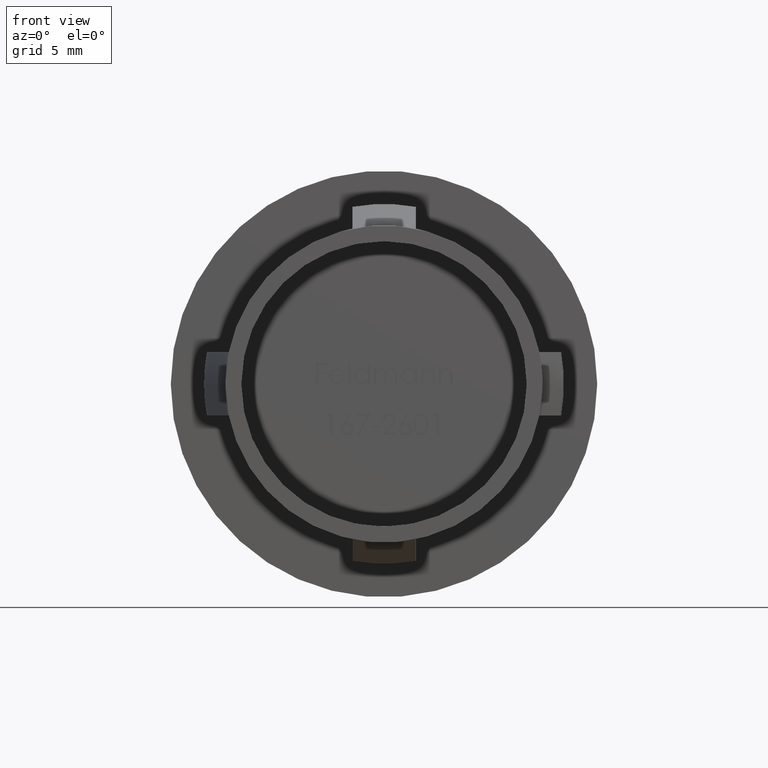
[diagram: clean part render]
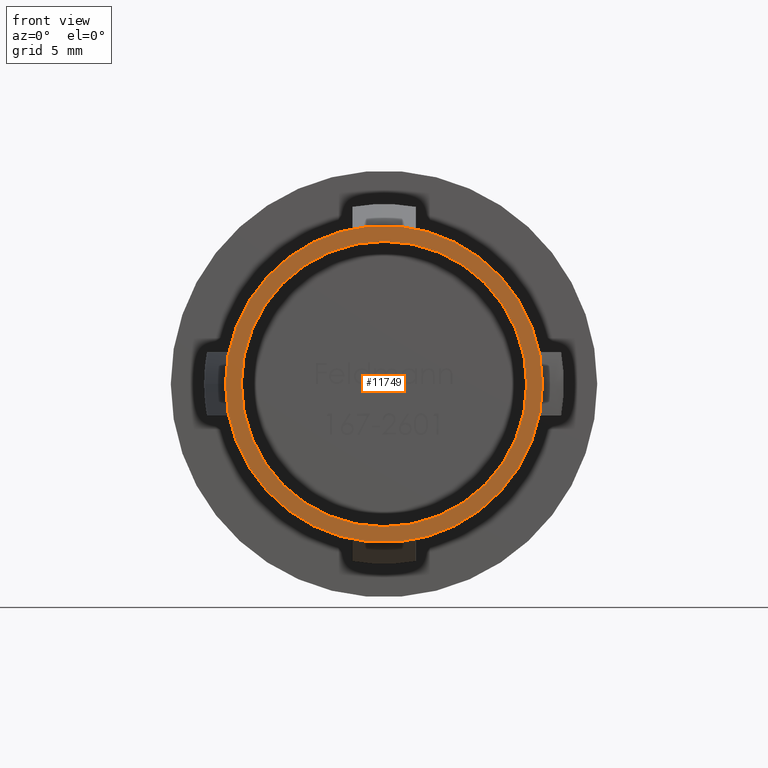
[diagram: same view with one face highlighted and labeled with its STEP entity id]
A machine part, front view. The second image highlights one B-rep face of the part: STEP entity #11749.
In plain terms, the highlighted planar face has unit normal (0, 1, -0).
Its self-contained STEP definition (entity closure, byte-faithful):
#250 = DIRECTION ( 'NONE',  ( -1.000000000000000000, 7.347880794884120229E-17, 0.000000000000000000 ) ) ;
#894 = CARTESIAN_POINT ( 'NONE',  ( -1.557750728515432986E-15, 0.000000000000000000, 0.000000000000000000 ) ) ;
#1254 = CARTESIAN_POINT ( 'NONE',  ( 10.00000000000000355, -7.347880794884123680E-16, 1.224646799147354045E-15 ) ) ;
#1377 = VERTEX_POINT ( 'NONE', #3438 ) ;
#2085 = CARTESIAN_POINT ( 'NONE',  ( -1.557750728515432986E-15, 0.000000000000000000, 0.000000000000000000 ) ) ;
#2576 = FACE_BOUND ( 'NONE', #8089, .T. ) ;
#3041 = VERTEX_POINT ( 'NONE', #1254 ) ;
#3438 = CARTESIAN_POINT ( 'NONE',  ( 9.000000000000001776, -6.613092715395710425E-16, 1.102182119232617911E-15 ) ) ;
#3460 = CIRCLE ( 'NONE', #3853, 9.000000000000003553 ) ;
#3544 = ORIENTED_EDGE ( 'NONE', *, *, #12709, .T. ) ;
#3725 = VERTEX_POINT ( 'NONE', #6618 ) ;
#3780 = DIRECTION ( 'NONE',  ( 7.347880794884120229E-17, 1.000000000000000000, -0.000000000000000000 ) ) ;
#3828 = DIRECTION ( 'NONE',  ( 7.347880794884120229E-17, 1.000000000000000000, -0.000000000000000000 ) ) ;
#3853 = AXIS2_PLACEMENT_3D ( 'NONE', #894, #7369, #13644 ) ;
#3864 = ORIENTED_EDGE ( 'NONE', *, *, #13024, .F. ) ;
#4889 = CIRCLE ( 'NONE', #11435, 9.000000000000003553 ) ;
#5763 = CARTESIAN_POINT ( 'NONE',  ( -10.00000000000000711, 7.347880794884123680E-16, 0.000000000000000000 ) ) ;
#6120 = AXIS2_PLACEMENT_3D ( 'NONE', #10162, #3828, #13201 ) ;
#6618 = CARTESIAN_POINT ( 'NONE',  ( -9.000000000000005329, 6.613092715395710425E-16, 0.000000000000000000 ) ) ;
#7369 = DIRECTION ( 'NONE',  ( 7.347880794884120229E-17, 1.000000000000000000, -0.000000000000000000 ) ) ;
#7753 = CARTESIAN_POINT ( 'NONE',  ( -1.557750728515432986E-15, 0.000000000000000000, 0.000000000000000000 ) ) ;
#7980 = CARTESIAN_POINT ( 'NONE',  ( -1.557750728515432986E-15, 0.000000000000000000, 0.000000000000000000 ) ) ;
#8089 = EDGE_LOOP ( 'NONE', ( #10374, #3544 ) ) ;
#8162 = EDGE_CURVE ( 'NONE', #3725, #1377, #3460, .T. ) ;
#8206 = CIRCLE ( 'NONE', #11123, 10.00000000000000533 ) ;
#8875 = VERTEX_POINT ( 'NONE', #5763 ) ;
#10162 = CARTESIAN_POINT ( 'NONE',  ( 9.000000000000001776, 3.673940397442063196E-17, 0.000000000000000000 ) ) ;
#10374 = ORIENTED_EDGE ( 'NONE', *, *, #8162, .T. ) ;
#10630 = DIRECTION ( 'NONE',  ( -1.000000000000000000, 7.347880794884120229E-17, 0.000000000000000000 ) ) ;
#10718 = FACE_OUTER_BOUND ( 'NONE', #11555, .T. ) ;
#10779 = DIRECTION ( 'NONE',  ( 7.347880794884120229E-17, 1.000000000000000000, -0.000000000000000000 ) ) ;
#11123 = AXIS2_PLACEMENT_3D ( 'NONE', #7980, #3780, #11195 ) ;
#11144 = PLANE ( 'NONE',  #6120 ) ;
#11195 = DIRECTION ( 'NONE',  ( -1.000000000000000000, 7.347880794884120229E-17, 0.000000000000000000 ) ) ;
#11435 = AXIS2_PLACEMENT_3D ( 'NONE', #7753, #10779, #250 ) ;
#11555 = EDGE_LOOP ( 'NONE', ( #3864, #12420 ) ) ;
#11722 = DIRECTION ( 'NONE',  ( 7.347880794884120229E-17, 1.000000000000000000, -0.000000000000000000 ) ) ;
#11749 = ADVANCED_FACE ( 'NONE', ( #2576, #10718 ), #11144, .F. ) ;
#11893 = EDGE_CURVE ( 'NONE', #3041, #8875, #8206, .T. ) ;
#11977 = AXIS2_PLACEMENT_3D ( 'NONE', #2085, #11722, #10630 ) ;
#12420 = ORIENTED_EDGE ( 'NONE', *, *, #11893, .F. ) ;
#12556 = CIRCLE ( 'NONE', #11977, 10.00000000000000533 ) ;
#12709 = EDGE_CURVE ( 'NONE', #1377, #3725, #4889, .T. ) ;
#13024 = EDGE_CURVE ( 'NONE', #8875, #3041, #12556, .T. ) ;
#13201 = DIRECTION ( 'NONE',  ( -1.000000000000000000, 7.347880794884120229E-17, 0.000000000000000000 ) ) ;
#13644 = DIRECTION ( 'NONE',  ( -1.000000000000000000, 7.347880794884120229E-17, 0.000000000000000000 ) ) ;